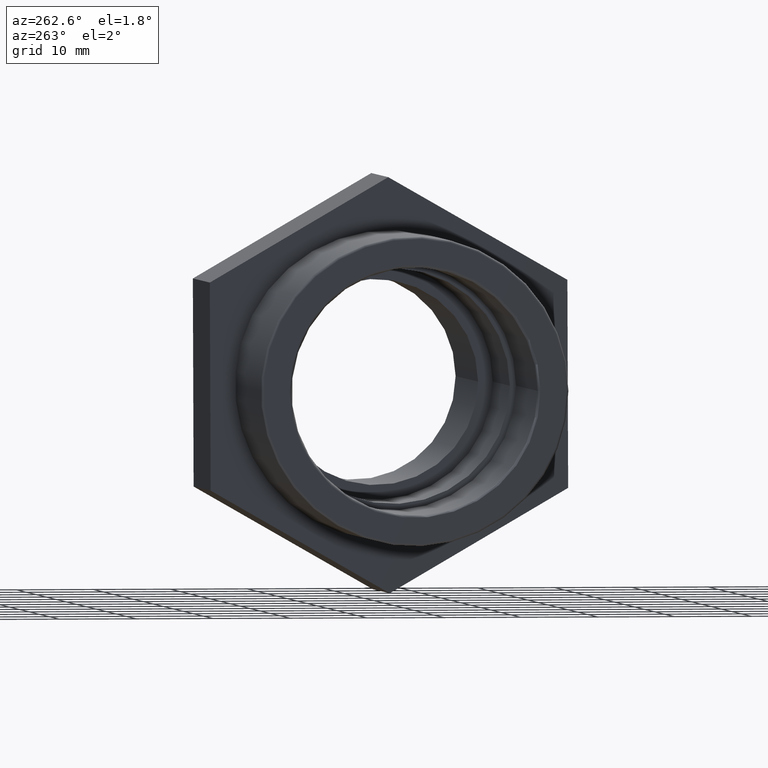
[diagram: clean part render]
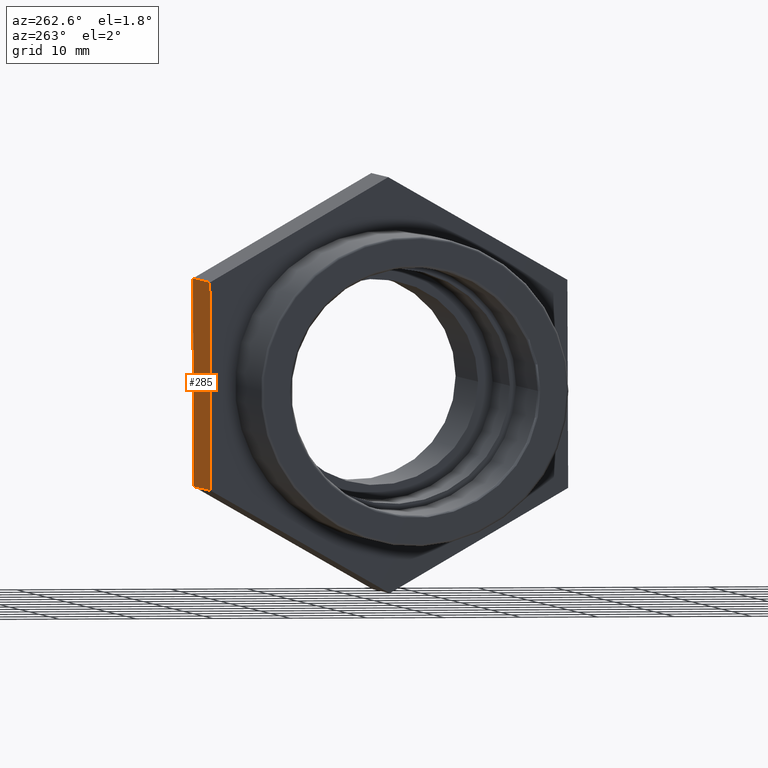
[diagram: same view with one face highlighted and labeled with its STEP entity id]
A machine part, auxiliary view. The second image highlights one B-rep face of the part: STEP entity #285.
In plain terms, the highlighted planar face has unit normal (-0, 1, -0.0036).
Its self-contained STEP definition (entity closure, byte-faithful):
#58=FACE_OUTER_BOUND('',#79,.T.);
#79=EDGE_LOOP('',(#224,#225,#226,#227));
#118=LINE('',#448,#136);
#123=LINE('',#458,#141);
#126=LINE('',#463,#144);
#127=LINE('',#464,#145);
#136=VECTOR('',#354,17.);
#141=VECTOR('',#361,17.);
#144=VECTOR('',#368,26.8467875173176);
#145=VECTOR('',#369,26.8467875173176);
#152=VERTEX_POINT('',#445);
#153=VERTEX_POINT('',#447);
#154=VERTEX_POINT('',#451);
#157=VERTEX_POINT('',#456);
#180=EDGE_CURVE('',#153,#152,#118,.T.);
#185=EDGE_CURVE('',#157,#154,#123,.T.);
#188=EDGE_CURVE('',#152,#154,#126,.T.);
#189=EDGE_CURVE('',#157,#153,#127,.T.);
#224=ORIENTED_EDGE('',*,*,#188,.T.);
#225=ORIENTED_EDGE('',*,*,#185,.F.);
#226=ORIENTED_EDGE('',*,*,#189,.T.);
#227=ORIENTED_EDGE('',*,*,#180,.T.);
#273=PLANE('',#308);
#285=ADVANCED_FACE('',(#58),#273,.T.);
#308=AXIS2_PLACEMENT_3D('',#462,#366,#367);
#354=DIRECTION('',(1.,6.9661052525499E-16,0.));
#361=DIRECTION('',(1.,6.9661052525499E-16,0.));
#366=DIRECTION('center_axis',(-6.96605962739338E-16,0.999993450406666,-0.00361927392861207));
#367=DIRECTION('ref_axis',(0.,0.00361927392861219,0.999993450406666));
#368=DIRECTION('',(2.43778272755173E-18,-0.00361927392861207,-0.999993450406666));
#369=DIRECTION('',(-2.43778272755173E-18,0.00361927392861207,0.999993450406666));
#445=CARTESIAN_POINT('',(12.,23.2984306610192,13.3391577220483));
#447=CARTESIAN_POINT('',(-5.00000000000003,23.2984306610192,13.3391577220483));
#448=CARTESIAN_POINT('',(-5.00000000000003,23.2984306610192,13.3391577220483));
#451=CARTESIAN_POINT('',(12.,23.2012647828908,-13.5074539597288));
#456=CARTESIAN_POINT('',(-5.00000000000003,23.2012647828908,-13.5074539597288));
#458=CARTESIAN_POINT('',(-5.00000000000003,23.2012647828908,-13.5074539597288));
#462=CARTESIAN_POINT('Origin',(-5.00000000000003,23.249847721955,-0.0841481188402415));
#463=CARTESIAN_POINT('',(12.,23.249847721955,-0.0841481188402328));
#464=CARTESIAN_POINT('',(-5.00000000000003,23.2012647828908,-13.5074539597288));